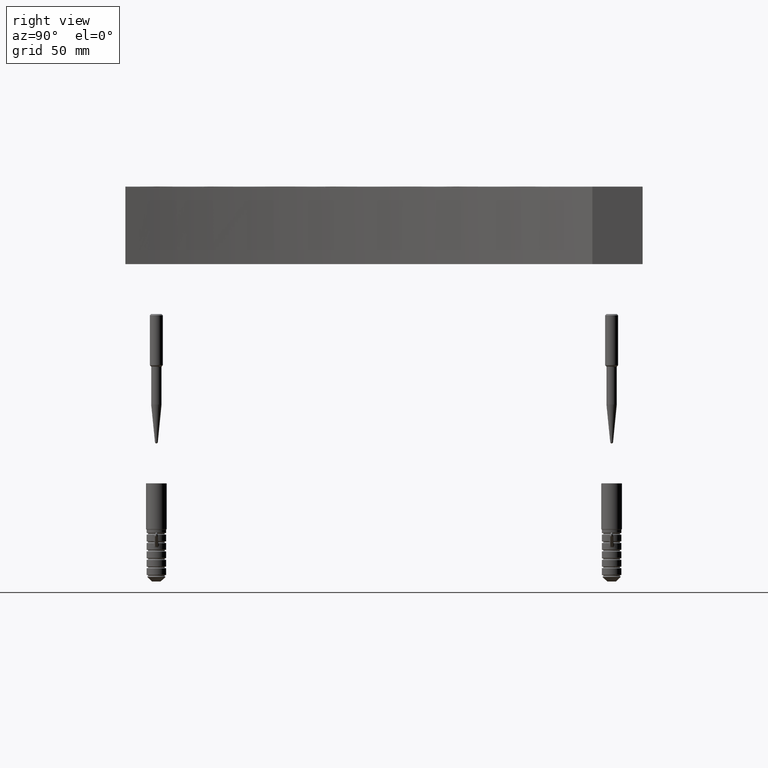
[diagram: clean part render]
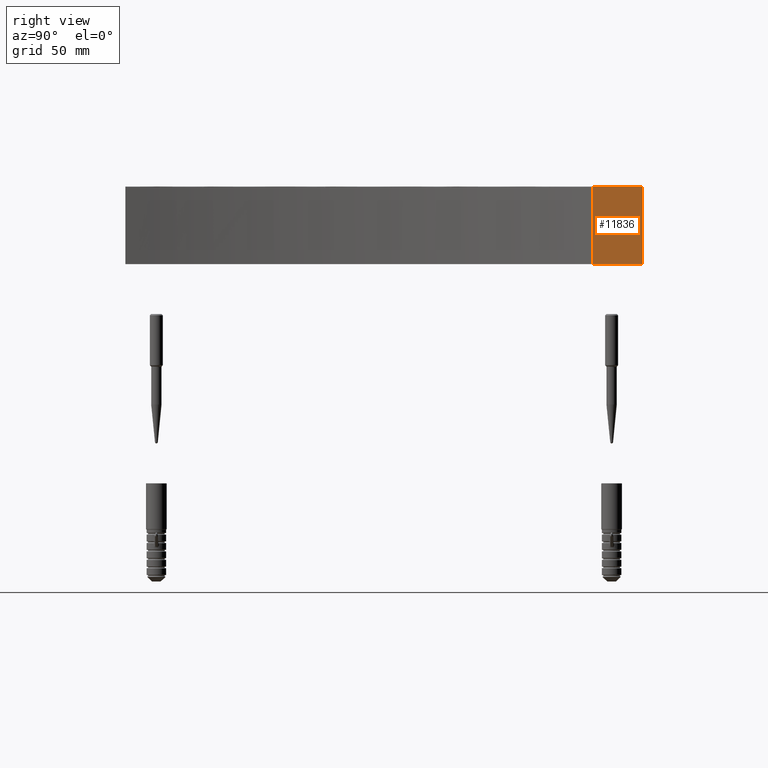
[diagram: same view with one face highlighted and labeled with its STEP entity id]
A machine part, right view. The second image highlights one B-rep face of the part: STEP entity #11836.
In plain terms, the highlighted planar face has unit normal (-1, 0, 0).
Its self-contained STEP definition (entity closure, byte-faithful):
#1880 = DIRECTION ( 'NONE',  ( -1.000000000000000000, 0.0000000000000000000, 0.0000000000000000000 ) ) ;
#2561 = LINE ( 'NONE', #18856, #7520 ) ;
#2801 = LINE ( 'NONE', #20104, #8697 ) ;
#3082 = DIRECTION ( 'NONE',  ( -0.0000000000000000000, -0.0000000000000000000, -1.000000000000000000 ) ) ;
#3400 = EDGE_CURVE ( 'NONE', #13638, #21105, #2801, .T. ) ;
#3598 = CARTESIAN_POINT ( 'NONE',  ( 88.58252976351174400, 180.5527123848540300, -28.00000000000000400 ) ) ;
#4990 = FACE_OUTER_BOUND ( 'NONE', #26771, .T. ) ;
#5259 = ORIENTED_EDGE ( 'NONE', *, *, #25728, .F. ) ;
#6110 = DIRECTION ( 'NONE',  ( 0.0000000000000000000, 0.0000000000000000000, 1.000000000000000000 ) ) ;
#7520 = VECTOR ( 'NONE', #23079, 1000.000000000000000 ) ;
#7653 = ORIENTED_EDGE ( 'NONE', *, *, #25959, .T. ) ;
#8349 = CARTESIAN_POINT ( 'NONE',  ( 88.58252976351174400, 180.5527123848540300, 2.000000000000000000 ) ) ;
#8697 = VECTOR ( 'NONE', #3082, 1000.000000000000000 ) ;
#8724 = ORIENTED_EDGE ( 'NONE', *, *, #3400, .F. ) ;
#11140 = EDGE_CURVE ( 'NONE', #26210, #12471, #18022, .T. ) ;
#11367 = ORIENTED_EDGE ( 'NONE', *, *, #11140, .T. ) ;
#11836 = ADVANCED_FACE ( 'NONE', ( #4990 ), #20756, .F. ) ;
#12471 = VERTEX_POINT ( 'NONE', #3598 ) ;
#12504 = CARTESIAN_POINT ( 'NONE',  ( 88.58252976351174400, 199.9999999999997400, 2.000000000000000000 ) ) ;
#13638 = VERTEX_POINT ( 'NONE', #19999 ) ;
#14902 = CARTESIAN_POINT ( 'NONE',  ( 88.58252976351174400, 199.9999999999997400, -28.00000000000000000 ) ) ;
#14951 = CARTESIAN_POINT ( 'NONE',  ( 88.58252976351174400, 199.9999999999997400, 1.750000000000000000 ) ) ;
#15675 = CARTESIAN_POINT ( 'NONE',  ( 88.58252976351174400, 180.5527123848540300, 1.750000000000000000 ) ) ;
#17073 = DIRECTION ( 'NONE',  ( -0.0000000000000000000, -1.000000000000000000, -0.0000000000000000000 ) ) ;
#17990 = LINE ( 'NONE', #14951, #18621 ) ;
#18022 = LINE ( 'NONE', #8349, #22908 ) ;
#18431 = AXIS2_PLACEMENT_3D ( 'NONE', #12504, #1880, #6110 ) ;
#18621 = VECTOR ( 'NONE', #17073, 1000.000000000000000 ) ;
#18856 = CARTESIAN_POINT ( 'NONE',  ( 88.58252976351174400, 199.9999999999997400, -28.00000000000000000 ) ) ;
#19999 = CARTESIAN_POINT ( 'NONE',  ( 88.58252976351174400, 199.9999999999997400, 1.750000000000000000 ) ) ;
#20104 = CARTESIAN_POINT ( 'NONE',  ( 88.58252976351174400, 199.9999999999997400, 2.000000000000000000 ) ) ;
#20756 = PLANE ( 'NONE',  #18431 ) ;
#21105 = VERTEX_POINT ( 'NONE', #14902 ) ;
#22908 = VECTOR ( 'NONE', #22969, 1000.000000000000000 ) ;
#22969 = DIRECTION ( 'NONE',  ( -0.0000000000000000000, -0.0000000000000000000, -1.000000000000000000 ) ) ;
#23079 = DIRECTION ( 'NONE',  ( 0.0000000000000000000, -1.000000000000000000, 0.0000000000000000000 ) ) ;
#25728 = EDGE_CURVE ( 'NONE', #21105, #12471, #2561, .T. ) ;
#25959 = EDGE_CURVE ( 'NONE', #13638, #26210, #17990, .T. ) ;
#26210 = VERTEX_POINT ( 'NONE', #15675 ) ;
#26771 = EDGE_LOOP ( 'NONE', ( #8724, #7653, #11367, #5259 ) ) ;